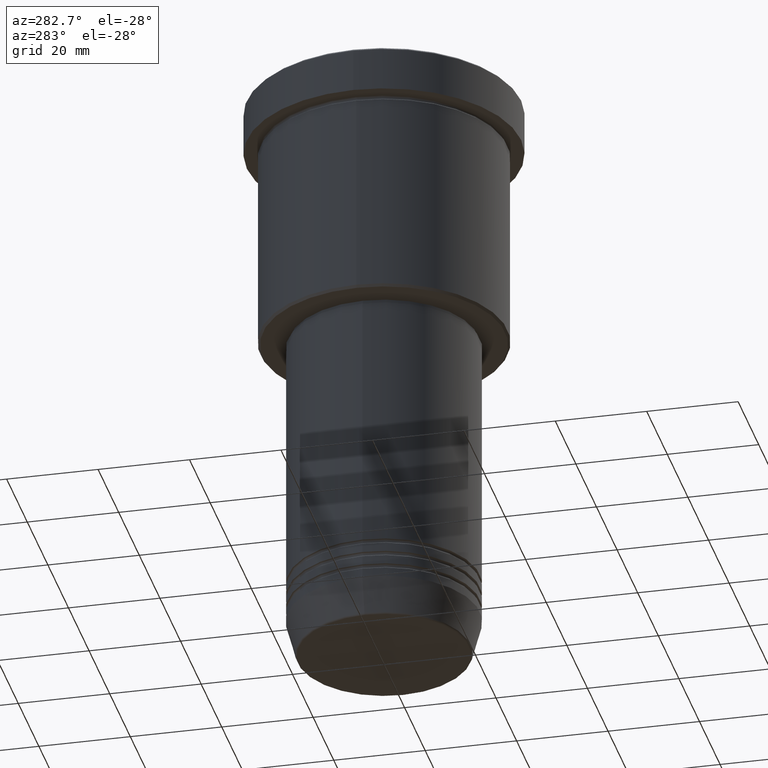
[diagram: clean part render]
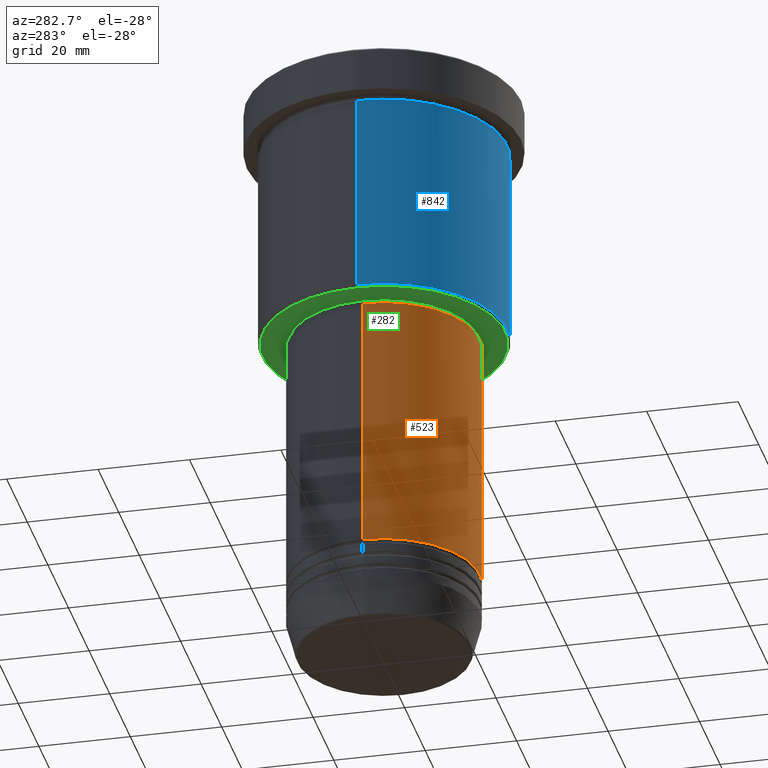
[diagram: same view with three faces highlighted in distinct colors, each labeled with its STEP entity id]
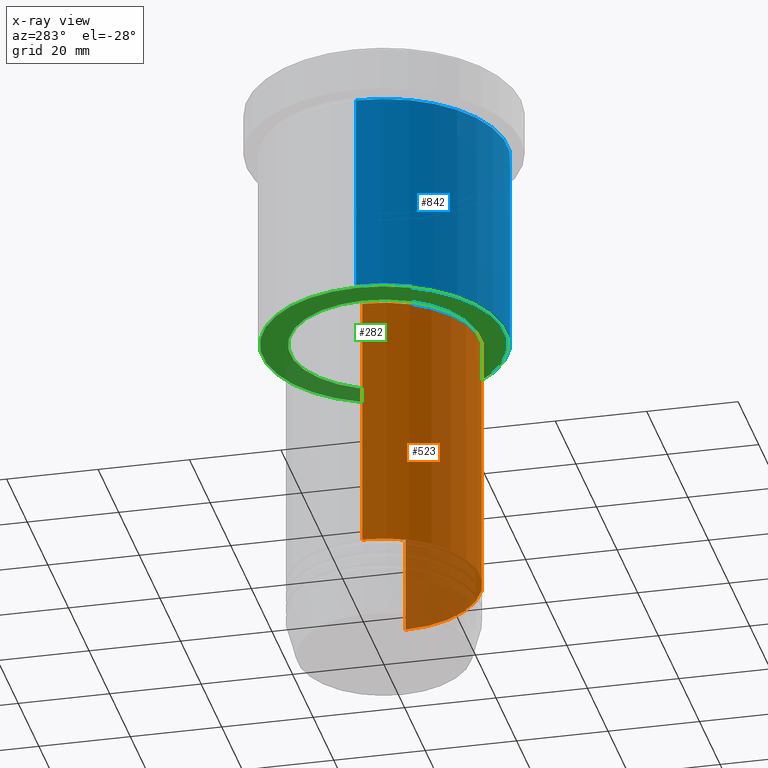
[diagram: x-ray of the same camera — body ghosted, the three highlighted faces saturated]
A machine part, auxiliary view with three faces highlighted in distinct colors.
The next image is the same camera in x-ray (body ghosted, the three faces saturated) — at least one of them is partly hidden behind the body in this view.
Their STEP definitions:

[orange] entity #523 — the highlighted cylindrical surface (partial cylindrical patch) has radius 21 mm, axis along (-0, -0, 1).
#14 = DIRECTION ( 'NONE',  ( 1.000000000000000000, 0.000000000000000000, 0.000000000000000000 ) ) ;
#24 = AXIS2_PLACEMENT_3D ( 'NONE', #477, #49, #481 ) ;
#43 = ORIENTED_EDGE ( 'NONE', *, *, #878, .T. ) ;
#49 = DIRECTION ( 'NONE',  ( -0.000000000000000000, -0.000000000000000000, 1.000000000000000000 ) ) ;
#51 = VERTEX_POINT ( 'NONE', #323 ) ;
#76 = DIRECTION ( 'NONE',  ( -0.000000000000000000, -0.000000000000000000, 1.000000000000000000 ) ) ;
#245 = DIRECTION ( 'NONE',  ( -0.000000000000000000, -0.000000000000000000, 1.000000000000000000 ) ) ;
#300 = CARTESIAN_POINT ( 'NONE',  ( 0.000000000000000000, 0.000000000000000000, -57.00000000000000000 ) ) ;
#310 = LINE ( 'NONE', #948, #933 ) ;
#315 = VERTEX_POINT ( 'NONE', #1151 ) ;
#323 = CARTESIAN_POINT ( 'NONE',  ( 21.00000000000000000, 0.000000000000000000, -113.9999999999999574 ) ) ;
#340 = LINE ( 'NONE', #608, #1130 ) ;
#403 = CARTESIAN_POINT ( 'NONE',  ( -21.00000000000000000, 2.571758278209441661E-15, -113.9999999999999574 ) ) ;
#477 = CARTESIAN_POINT ( 'NONE',  ( 0.000000000000000000, 0.000000000000000000, -113.9999999999999574 ) ) ;
#481 = DIRECTION ( 'NONE',  ( 1.000000000000000000, 0.000000000000000000, 0.000000000000000000 ) ) ;
#492 = EDGE_CURVE ( 'NONE', #51, #315, #340, .T. ) ;
#523 = ADVANCED_FACE ( 'NONE', ( #680 ), #587, .T. ) ;
#535 = AXIS2_PLACEMENT_3D ( 'NONE', #894, #76, #709 ) ;
#568 = DIRECTION ( 'NONE',  ( -0.000000000000000000, -0.000000000000000000, 1.000000000000000000 ) ) ;
#573 = AXIS2_PLACEMENT_3D ( 'NONE', #300, #568, #14 ) ;
#587 = CYLINDRICAL_SURFACE ( 'NONE', #535, 21.00000000000000000 ) ;
#608 = CARTESIAN_POINT ( 'NONE',  ( 21.00000000000000000, 0.000000000000000000, 0.000000000000000000 ) ) ;
#680 = FACE_OUTER_BOUND ( 'NONE', #692, .T. ) ;
#692 = EDGE_LOOP ( 'NONE', ( #791, #43, #986, #876 ) ) ;
#709 = DIRECTION ( 'NONE',  ( 1.000000000000000000, 0.000000000000000000, 0.000000000000000000 ) ) ;
#724 = VERTEX_POINT ( 'NONE', #944 ) ;
#791 = ORIENTED_EDGE ( 'NONE', *, *, #912, .F. ) ;
#876 = ORIENTED_EDGE ( 'NONE', *, *, #919, .F. ) ;
#878 = EDGE_CURVE ( 'NONE', #937, #51, #991, .T. ) ;
#894 = CARTESIAN_POINT ( 'NONE',  ( 0.000000000000000000, 0.000000000000000000, 0.000000000000000000 ) ) ;
#912 = EDGE_CURVE ( 'NONE', #937, #724, #310, .T. ) ;
#919 = EDGE_CURVE ( 'NONE', #724, #315, #1006, .T. ) ;
#933 = VECTOR ( 'NONE', #1109, 1000.000000000000000 ) ;
#937 = VERTEX_POINT ( 'NONE', #403 ) ;
#944 = CARTESIAN_POINT ( 'NONE',  ( -21.00000000000000000, 2.571758278209441661E-15, -57.00000000000000000 ) ) ;
#948 = CARTESIAN_POINT ( 'NONE',  ( -21.00000000000000000, 2.571758278209441661E-15, 0.000000000000000000 ) ) ;
#986 = ORIENTED_EDGE ( 'NONE', *, *, #492, .T. ) ;
#991 = CIRCLE ( 'NONE', #24, 21.00000000000000000 ) ;
#1006 = CIRCLE ( 'NONE', #573, 21.00000000000000000 ) ;
#1109 = DIRECTION ( 'NONE',  ( -0.000000000000000000, -0.000000000000000000, 1.000000000000000000 ) ) ;
#1130 = VECTOR ( 'NONE', #245, 1000.000000000000000 ) ;
#1151 = CARTESIAN_POINT ( 'NONE',  ( 21.00000000000000000, 0.000000000000000000, -57.00000000000000000 ) ) ;

[blue] entity #842 — the highlighted cylindrical surface (partial cylindrical patch) has radius 27 mm, axis along (-0, -0, 1).
#8 = AXIS2_PLACEMENT_3D ( 'NONE', #597, #1179, #202 ) ;
#13 = DIRECTION ( 'NONE',  ( -0.000000000000000000, -0.000000000000000000, 1.000000000000000000 ) ) ;
#132 = ORIENTED_EDGE ( 'NONE', *, *, #1025, .F. ) ;
#134 = DIRECTION ( 'NONE',  ( -0.000000000000000000, -0.000000000000000000, 1.000000000000000000 ) ) ;
#172 = VERTEX_POINT ( 'NONE', #1064 ) ;
#191 = ORIENTED_EDGE ( 'NONE', *, *, #545, .T. ) ;
#195 = CIRCLE ( 'NONE', #868, 27.00000000000000355 ) ;
#201 = LINE ( 'NONE', #205, #961 ) ;
#202 = DIRECTION ( 'NONE',  ( 1.000000000000000000, 0.000000000000000000, 0.000000000000000000 ) ) ;
#205 = CARTESIAN_POINT ( 'NONE',  ( 27.00000000000000355, 0.000000000000000000, 0.000000000000000000 ) ) ;
#208 = CARTESIAN_POINT ( 'NONE',  ( 0.000000000000000000, 0.000000000000000000, -55.49999999999996447 ) ) ;
#226 = CARTESIAN_POINT ( 'NONE',  ( 0.000000000000000000, 0.000000000000000000, -10.99999999999999289 ) ) ;
#254 = VERTEX_POINT ( 'NONE', #967 ) ;
#266 = CARTESIAN_POINT ( 'NONE',  ( -27.00000000000000355, 3.306546357697854128E-15, 0.000000000000000000 ) ) ;
#382 = LINE ( 'NONE', #266, #618 ) ;
#423 = DIRECTION ( 'NONE',  ( 1.000000000000000000, 0.000000000000000000, 0.000000000000000000 ) ) ;
#441 = ORIENTED_EDGE ( 'NONE', *, *, #826, .F. ) ;
#470 = AXIS2_PLACEMENT_3D ( 'NONE', #226, #134, #423 ) ;
#471 = EDGE_LOOP ( 'NONE', ( #132, #191, #1143, #441 ) ) ;
#497 = FACE_OUTER_BOUND ( 'NONE', #471, .T. ) ;
#545 = EDGE_CURVE ( 'NONE', #960, #172, #195, .T. ) ;
#558 = DIRECTION ( 'NONE',  ( -0.000000000000000000, -0.000000000000000000, 1.000000000000000000 ) ) ;
#597 = CARTESIAN_POINT ( 'NONE',  ( 0.000000000000000000, 0.000000000000000000, 0.000000000000000000 ) ) ;
#618 = VECTOR ( 'NONE', #819, 1000.000000000000000 ) ;
#667 = CARTESIAN_POINT ( 'NONE',  ( -27.00000000000000355, 3.306546357697854128E-15, -55.49999999999996447 ) ) ;
#688 = CYLINDRICAL_SURFACE ( 'NONE', #8, 27.00000000000000355 ) ;
#734 = DIRECTION ( 'NONE',  ( -1.000000000000000000, 0.000000000000000000, 0.000000000000000000 ) ) ;
#756 = CARTESIAN_POINT ( 'NONE',  ( 27.00000000000000355, 0.000000000000000000, -10.99999999999999289 ) ) ;
#774 = EDGE_CURVE ( 'NONE', #172, #900, #201, .T. ) ;
#819 = DIRECTION ( 'NONE',  ( -0.000000000000000000, -0.000000000000000000, 1.000000000000000000 ) ) ;
#826 = EDGE_CURVE ( 'NONE', #254, #900, #1132, .T. ) ;
#842 = ADVANCED_FACE ( 'NONE', ( #497 ), #688, .T. ) ;
#868 = AXIS2_PLACEMENT_3D ( 'NONE', #208, #13, #734 ) ;
#900 = VERTEX_POINT ( 'NONE', #756 ) ;
#960 = VERTEX_POINT ( 'NONE', #667 ) ;
#961 = VECTOR ( 'NONE', #558, 1000.000000000000000 ) ;
#967 = CARTESIAN_POINT ( 'NONE',  ( -27.00000000000000355, 3.306546357697854128E-15, -10.99999999999999289 ) ) ;
#1025 = EDGE_CURVE ( 'NONE', #960, #254, #382, .T. ) ;
#1064 = CARTESIAN_POINT ( 'NONE',  ( 27.00000000000000355, 0.000000000000000000, -55.49999999999996447 ) ) ;
#1132 = CIRCLE ( 'NONE', #470, 27.00000000000000355 ) ;
#1143 = ORIENTED_EDGE ( 'NONE', *, *, #774, .T. ) ;
#1179 = DIRECTION ( 'NONE',  ( -0.000000000000000000, -0.000000000000000000, 1.000000000000000000 ) ) ;

[green] entity #282 — the highlighted planar face has unit normal (0, 0, -1).
#5 = CIRCLE ( 'NONE', #1065, 26.49999999999998224 ) ;
#39 = DIRECTION ( 'NONE',  ( 0.000000000000000000, 0.000000000000000000, -1.000000000000000000 ) ) ;
#55 = CARTESIAN_POINT ( 'NONE',  ( 26.49999999999998224, 0.000000000000000000, -55.99999999999999289 ) ) ;
#56 = VERTEX_POINT ( 'NONE', #301 ) ;
#59 = DIRECTION ( 'NONE',  ( -0.000000000000000000, -0.000000000000000000, 1.000000000000000000 ) ) ;
#62 = CARTESIAN_POINT ( 'NONE',  ( 0.000000000000000000, 0.000000000000000000, -55.99999999999999289 ) ) ;
#74 = EDGE_CURVE ( 'NONE', #392, #56, #790, .T. ) ;
#81 = CARTESIAN_POINT ( 'NONE',  ( 0.000000000000000000, 0.000000000000000000, -55.99999999999999289 ) ) ;
#234 = ORIENTED_EDGE ( 'NONE', *, *, #1018, .T. ) ;
#242 = EDGE_CURVE ( 'NONE', #56, #392, #5, .T. ) ;
#255 = ORIENTED_EDGE ( 'NONE', *, *, #74, .T. ) ;
#282 = ADVANCED_FACE ( 'NONE', ( #898, #433 ), #695, .T. ) ;
#294 = VERTEX_POINT ( 'NONE', #426 ) ;
#301 = CARTESIAN_POINT ( 'NONE',  ( -26.49999999999998224, 3.275930187719168763E-15, -55.99999999999999289 ) ) ;
#317 = AXIS2_PLACEMENT_3D ( 'NONE', #524, #1164, #353 ) ;
#353 = DIRECTION ( 'NONE',  ( -1.000000000000000000, 0.000000000000000000, -0.000000000000000000 ) ) ;
#356 = DIRECTION ( 'NONE',  ( -1.000000000000000000, 0.000000000000000000, 0.000000000000000000 ) ) ;
#384 = CARTESIAN_POINT ( 'NONE',  ( 0.000000000000000000, 0.000000000000000000, -55.99999999999999289 ) ) ;
#392 = VERTEX_POINT ( 'NONE', #55 ) ;
#393 = AXIS2_PLACEMENT_3D ( 'NONE', #663, #39, #1015 ) ;
#397 = AXIS2_PLACEMENT_3D ( 'NONE', #384, #735, #647 ) ;
#426 = CARTESIAN_POINT ( 'NONE',  ( -20.50000000000000000, 2.510525938252074481E-15, -55.99999999999999289 ) ) ;
#433 = FACE_BOUND ( 'NONE', #1076, .T. ) ;
#435 = EDGE_LOOP ( 'NONE', ( #255, #611 ) ) ;
#524 = CARTESIAN_POINT ( 'NONE',  ( 0.000000000000000000, 27.00000000000000355, -55.99999999999999289 ) ) ;
#596 = AXIS2_PLACEMENT_3D ( 'NONE', #62, #59, #609 ) ;
#604 = DIRECTION ( 'NONE',  ( 0.000000000000000000, 0.000000000000000000, -1.000000000000000000 ) ) ;
#609 = DIRECTION ( 'NONE',  ( 1.000000000000000000, 0.000000000000000000, 0.000000000000000000 ) ) ;
#611 = ORIENTED_EDGE ( 'NONE', *, *, #242, .T. ) ;
#647 = DIRECTION ( 'NONE',  ( 1.000000000000000000, 0.000000000000000000, 0.000000000000000000 ) ) ;
#663 = CARTESIAN_POINT ( 'NONE',  ( 0.000000000000000000, 0.000000000000000000, -55.99999999999999289 ) ) ;
#695 = PLANE ( 'NONE',  #317 ) ;
#735 = DIRECTION ( 'NONE',  ( -0.000000000000000000, -0.000000000000000000, 1.000000000000000000 ) ) ;
#749 = ORIENTED_EDGE ( 'NONE', *, *, #1117, .T. ) ;
#790 = CIRCLE ( 'NONE', #393, 26.49999999999998224 ) ;
#843 = CARTESIAN_POINT ( 'NONE',  ( 20.50000000000000000, 0.000000000000000000, -55.99999999999999289 ) ) ;
#898 = FACE_OUTER_BOUND ( 'NONE', #435, .T. ) ;
#988 = VERTEX_POINT ( 'NONE', #843 ) ;
#1015 = DIRECTION ( 'NONE',  ( -1.000000000000000000, 0.000000000000000000, 0.000000000000000000 ) ) ;
#1018 = EDGE_CURVE ( 'NONE', #294, #988, #1069, .T. ) ;
#1065 = AXIS2_PLACEMENT_3D ( 'NONE', #81, #604, #356 ) ;
#1069 = CIRCLE ( 'NONE', #397, 20.50000000000000000 ) ;
#1076 = EDGE_LOOP ( 'NONE', ( #749, #234 ) ) ;
#1117 = EDGE_CURVE ( 'NONE', #988, #294, #1134, .T. ) ;
#1134 = CIRCLE ( 'NONE', #596, 20.50000000000000000 ) ;
#1164 = DIRECTION ( 'NONE',  ( 0.000000000000000000, 0.000000000000000000, -1.000000000000000000 ) ) ;